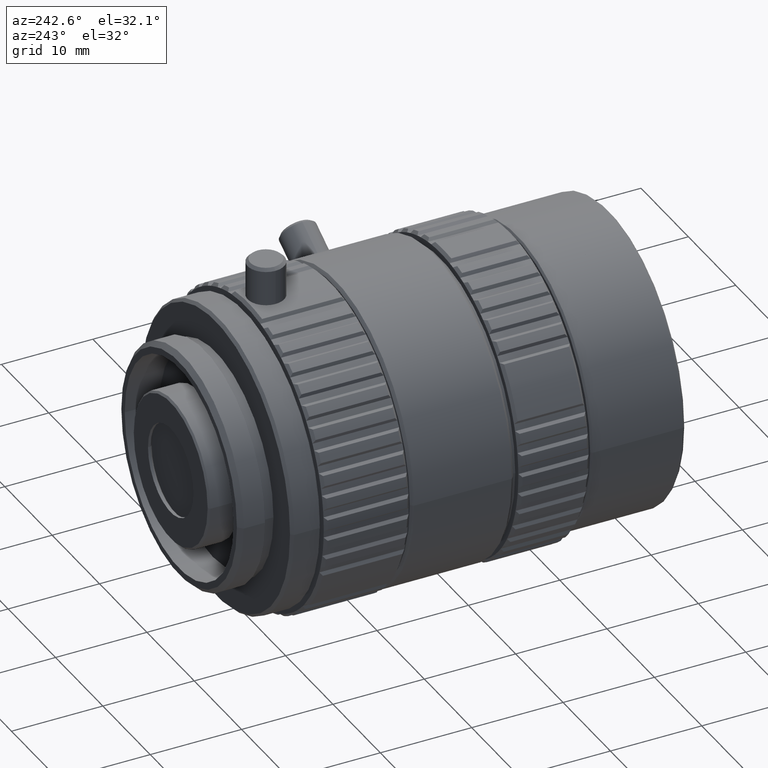
[diagram: clean part render]
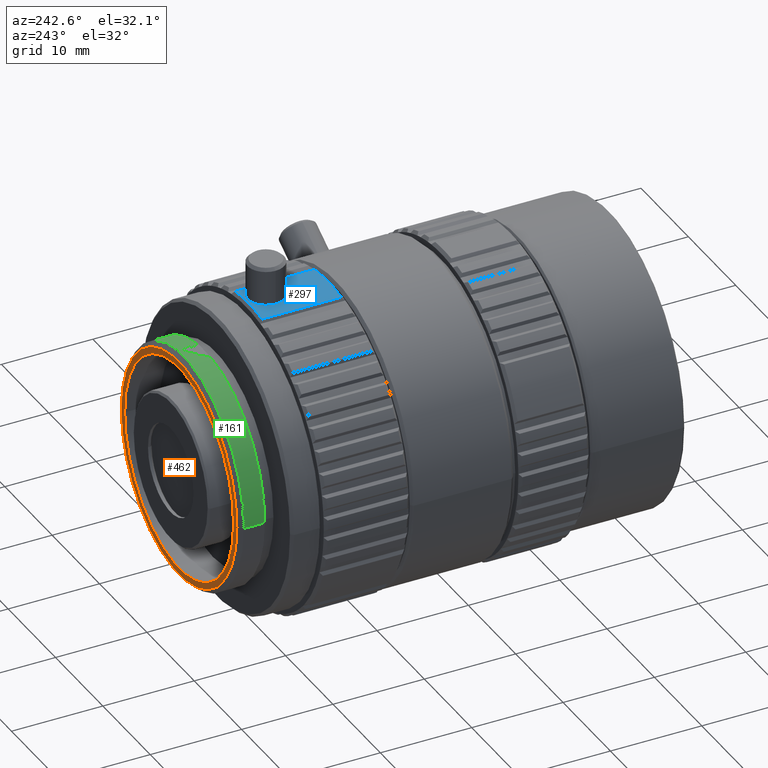
[diagram: same view with three faces highlighted in distinct colors, each labeled with its STEP entity id]
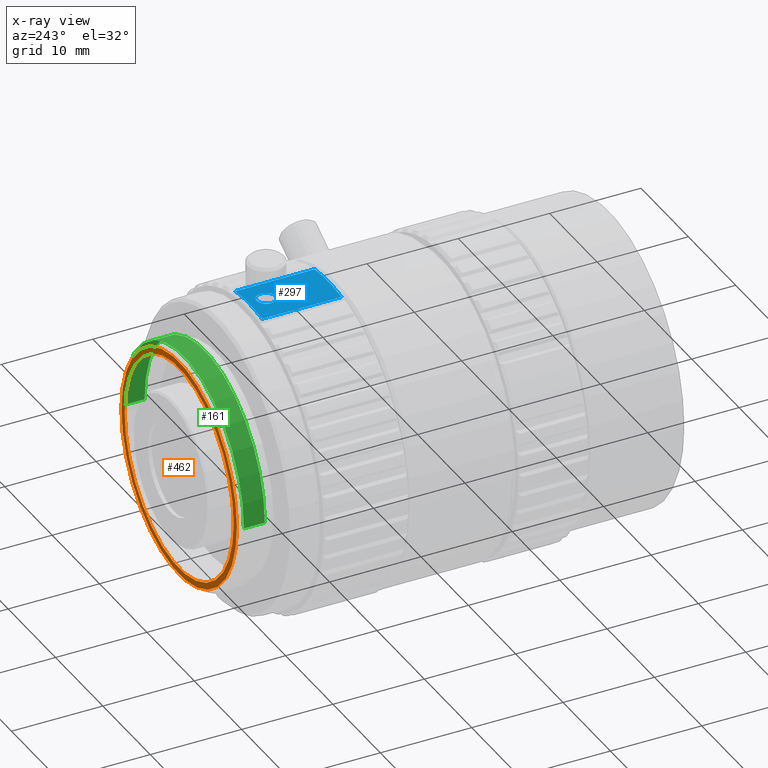
[diagram: x-ray of the same camera — body ghosted, the three highlighted faces saturated]
A machine part, auxiliary view with three faces highlighted in distinct colors.
The next image is the same camera in x-ray (body ghosted, the three faces saturated) — at least one of them is partly hidden behind the body in this view.
Their STEP definitions:

[orange] entity #462 — the highlighted planar face has unit normal (0, 1, 0).
#462=ADVANCED_FACE('0:10896',(#1954,#1955),#1956,.T.);
#1954=FACE_OUTER_BOUND('',#4285,.T.);
#1955=FACE_BOUND('',#4286,.T.);
#1956=PLANE('',#4287);
#4285=EDGE_LOOP('',(#8559,#8560));
#4286=EDGE_LOOP('',(#8561,#8562));
#4287=AXIS2_PLACEMENT_3D('',#8563,#8564,#8565);
#8559=ORIENTED_EDGE('',*,*,#14742,.F.);
#8560=ORIENTED_EDGE('',*,*,#14661,.F.);
#8561=ORIENTED_EDGE('',*,*,#14666,.T.);
#8562=ORIENTED_EDGE('',*,*,#14739,.T.);
#8563=CARTESIAN_POINT('',(2.44921270764476E-19,-0.013526,0.0122));
#8564=DIRECTION('',(2.29561756065156E-49,1.0,3.74915180455535E-33));
#8565=DIRECTION('',(0.0,3.74915180455535E-33,-1.0));
#14661=EDGE_CURVE('0:11685',#17363,#17365,#17366,.T.);
#14666=EDGE_CURVE('0:11679',#17369,#17373,#17375,.T.);
#14739=EDGE_CURVE('0:11679',#17373,#17369,#17492,.T.);
#14742=EDGE_CURVE('0:11685',#17365,#17363,#17495,.T.);
#17363=VERTEX_POINT('',#21582);
#17365=VERTEX_POINT('NONE',#21585);
#17366=CIRCLE('',#21586,0.0122);
#17369=VERTEX_POINT('NONE',#21590);
#17373=VERTEX_POINT('',#21595);
#17375=CIRCLE('',#21598,0.0115);
#17492=CIRCLE('',#21806,0.0115);
#17495=CIRCLE('',#21809,0.0122);
#21582=CARTESIAN_POINT('',(0.0122,-0.013526,-4.67220278187292E-17));
#21585=CARTESIAN_POINT('',(-0.0122,-0.013526,-4.66914116487505E-17));
#21586=AXIS2_PLACEMENT_3D('',#26612,#26613,#26614);
#21590=CARTESIAN_POINT('',(0.0115,-0.013526,-4.8216096913689E-17));
#21595=CARTESIAN_POINT('',(-0.0115,-0.013526,-4.96244407327084E-17));
#21598=AXIS2_PLACEMENT_3D('',#26621,#26622,#26623);
#21806=AXIS2_PLACEMENT_3D('',#26778,#26779,#26780);
#21809=AXIS2_PLACEMENT_3D('',#26787,#26788,#26789);
#26612=CARTESIAN_POINT('',(2.44921270764476E-19,-0.013526,-4.8216096913689E-17));
#26613=DIRECTION('',(0.0,-1.0,0.0));
#26614=DIRECTION('',(1.0,0.0,0.0));
#26621=CARTESIAN_POINT('',(2.44921270764476E-19,-0.013526,-4.8216096913689E-17));
#26622=DIRECTION('',(0.0,-1.0,0.0));
#26623=DIRECTION('',(1.0,0.0,0.0));
#26778=CARTESIAN_POINT('',(2.44921270764476E-19,-0.013526,-4.8216096913689E-17));
#26779=DIRECTION('',(0.0,-1.0,0.0));
#26780=DIRECTION('',(1.0,0.0,0.0));
#26787=CARTESIAN_POINT('',(2.44921270764476E-19,-0.013526,-4.8216096913689E-17));
#26788=DIRECTION('',(0.0,-1.0,0.0));
#26789=DIRECTION('',(1.0,0.0,0.0));

[blue] entity #297 — the highlighted cylindrical surface (partial cylindrical patch) has radius 16.75 mm, axis along (0, 1, 0).
#297=ADVANCED_FACE('0:10401',(#1608,#1609),#1610,.T.);
#1608=FACE_OUTER_BOUND('',#3939,.T.);
#1609=FACE_BOUND('',#3940,.T.);
#1610=CYLINDRICAL_SURFACE('',#3941,0.01675);
#3939=EDGE_LOOP('',(#7097,#7098,#7099,#7100));
#3940=EDGE_LOOP('',(#7101,#7102));
#3941=AXIS2_PLACEMENT_3D('',#7103,#7104,#7105);
#7097=ORIENTED_EDGE('',*,*,#14935,.F.);
#7098=ORIENTED_EDGE('',*,*,#15046,.T.);
#7099=ORIENTED_EDGE('',*,*,#15047,.T.);
#7100=ORIENTED_EDGE('',*,*,#15048,.F.);
#7101=ORIENTED_EDGE('',*,*,#14724,.F.);
#7102=ORIENTED_EDGE('',*,*,#14699,.F.);
#7103=CARTESIAN_POINT('',(-2.23184507984128E-18,-0.053976,-4.8216096913689E-17));
#7104=DIRECTION('',(0.0,1.0,-0.0));
#7105=DIRECTION('',(1.0,0.0,0.0));
#14699=EDGE_CURVE('0:11637',#17436,#17432,#17438,.T.);
#14724=EDGE_CURVE('0:11637',#17432,#17436,#17477,.T.);
#14935=EDGE_CURVE('0:12297',#17838,#17840,#17841,.T.);
#15046=EDGE_CURVE('0:12633',#17838,#18022,#18023,.T.);
#15047=EDGE_CURVE('0:12636',#18022,#18024,#18025,.T.);
#15048=EDGE_CURVE('0:12639',#17840,#18024,#18026,.T.);
#17432=VERTEX_POINT('NONE',#21671);
#17436=VERTEX_POINT('',#21676);
#17438=B_SPLINE_CURVE_WITH_KNOTS('',3,(#21679,#21680,#21681,#21682,#21683,#21684,#21685,#21686,#21687,#21688,#21689,#21690,#21691,#21692,#21693,#21694,#21695,#21696,#21697,#21698,#21699,#21700,#21701,#21702,#21703,#21704,#21705,#21706,#21707,#21708,#21709,#21710,#21711,#21712),.UNSPECIFIED.,.F.,.F.,(4,3,3,3,3,3,3,3,3,3,3,4),(0.500085192836003,0.584992677064609,0.617773337121513,0.64476449184537,0.716154585152398,0.748414328409746,0.780066575245231,0.835691683730441,0.874565499039763,0.902744293206046,0.970037701148248,1.0),.UNSPECIFIED.);
#17477=B_SPLINE_CURVE_WITH_KNOTS('',3,(#21761,#21762,#21763,#21764,#21765,#21766,#21767,#21768,#21769,#21770,#21771,#21772,#21773,#21774,#21775,#21776,#21777,#21778,#21779,#21780,#21781,#21782,#21783,#21784,#21785,#21786,#21787,#21788,#21789,#21790,#21791),.UNSPECIFIED.,.F.,.F.,(4,3,3,3,3,3,3,3,3,3,4),(0.0,0.0625106491045004,0.123894171636405,0.153654112083464,0.221389845581833,0.252494024187756,0.314391816349818,0.372067091107547,0.403838696627453,0.470541752772932,0.500085192836003),.UNSPECIFIED.);
#17838=VERTEX_POINT('NONE',#22158);
#17840=VERTEX_POINT('NONE',#22160);
#17841=CIRCLE('',#22161,0.01675);
#18022=VERTEX_POINT('NONE',#22416);
#18023=LINE('',#22417,#22418);
#18024=VERTEX_POINT('NONE',#22419);
#18025=CIRCLE('',#22420,0.01675);
#18026=LINE('',#22421,#22422);
#21671=CARTESIAN_POINT('',(-0.001,-0.023026,0.0167201226072059));
#21676=CARTESIAN_POINT('',(0.001,-0.023026,0.0167201226072059));
#21679=CARTESIAN_POINT('',(0.001,-0.023026,0.0167201226072059));
#21680=CARTESIAN_POINT('',(0.000999999999999996,-0.022906861367662,0.0167201226072059));
#21681=CARTESIAN_POINT('',(0.000979744235424492,-0.0227435750317003,0.0167215726810316));
#21682=CARTESIAN_POINT('',(0.000888266947840262,-0.022566672416053,0.0167264306362527));
#21683=CARTESIAN_POINT('',(0.000852949850714259,-0.022498374732293,0.0167283061714911));
#21684=CARTESIAN_POINT('',(0.000807155582934813,-0.0224290709918325,0.0167306439664346));
#21685=CARTESIAN_POINT('',(0.000748497402783866,-0.0223628622782364,0.0167332678111009));
#21686=CARTESIAN_POINT('',(0.000700199045962323,-0.0223083469137002,0.016735428249519));
#21687=CARTESIAN_POINT('',(0.000643456024622476,-0.022257400688476,0.0167377297949559));
#21688=CARTESIAN_POINT('',(0.000587505255672131,-0.0222167796501832,0.0167396934731361));
#21689=CARTESIAN_POINT('',(0.000439518603865988,-0.0221093392778234,0.0167448872919982));
#21690=CARTESIAN_POINT('',(0.000287057209130306,-0.0220597388264452,0.0167480070638101));
#21691=CARTESIAN_POINT('',(0.000161993274820062,-0.0220392081379982,0.0167492166437392));
#21692=CARTESIAN_POINT('',(0.000105479405392115,-0.0220299307339843,0.0167497632285125));
#21693=CARTESIAN_POINT('',(5.36746075174656E-05,-0.0220263850555336,0.0167499770122678));
#21694=CARTESIAN_POINT('',(7.73035278534375E-06,-0.0220260298796235,0.0167499982161684));
#21695=CARTESIAN_POINT('',(-3.73487068913722E-05,-0.0220256813921763,0.0167500190207697));
#21696=CARTESIAN_POINT('',(-8.60221611846641E-05,-0.0220281899861523,0.0167498676217966));
#21697=CARTESIAN_POINT('',(-0.000140473528261552,-0.0220359155652886,0.0167494109504739));
#21698=CARTESIAN_POINT('',(-0.000236165414419351,-0.0220494923637952,0.0167486084042283));
#21699=CARTESIAN_POINT('',(-0.000347643290734095,-0.0220792817906058,0.0167467938285857));
#21700=CARTESIAN_POINT('',(-0.000463613474743374,-0.0221399624465993,0.0167435827273029));
#21701=CARTESIAN_POINT('',(-0.000544659671997325,-0.0221823693502112,0.0167413386371499));
#21702=CARTESIAN_POINT('',(-0.000627046732560074,-0.0222395255366259,0.0167384359982589));
#21703=CARTESIAN_POINT('',(-0.00070396749058673,-0.0223157678040267,0.0167352003206474));
#21704=CARTESIAN_POINT('',(-0.000759725696728845,-0.0223710341868801,0.016732854847411));
#21705=CARTESIAN_POINT('',(-0.000805915869755752,-0.0224298549540026,0.0167306429641589));
#21706=CARTESIAN_POINT('',(-0.000843476443254059,-0.0224888338342045,0.016728749131052));
#21707=CARTESIAN_POINT('',(-0.000933174355096894,-0.0226296805227454,0.0167242264931037));
#21708=CARTESIAN_POINT('',(-0.000973635814851322,-0.0227697523217534,0.0167216866350255));
#21709=CARTESIAN_POINT('',(-0.000990057583218277,-0.0228853373471316,0.0167207142784604));
#21710=CARTESIAN_POINT('',(-0.000997369353368298,-0.0229368014233178,0.0167202813380152));
#21711=CARTESIAN_POINT('',(-0.001,-0.0229840261720646,0.0167201226072059));
#21712=CARTESIAN_POINT('',(-0.001,-0.023026,0.0167201226072059));
#21761=CARTESIAN_POINT('',(-0.001,-0.023026,0.0167201226072059));
#21762=CARTESIAN_POINT('',(-0.001,-0.0231136311998549,0.0167201226072059));
#21763=CARTESIAN_POINT('',(-0.000988898474597032,-0.0232240596015257,0.0167208362179166));
#21764=CARTESIAN_POINT('',(-0.000946728341060151,-0.0233480333029882,0.0167232235363949));
#21765=CARTESIAN_POINT('',(-0.000905318575216778,-0.0234697716404732,0.0167255678092461));
#21766=CARTESIAN_POINT('',(-0.000832589693258675,-0.0236053750993907,0.0167297189923264));
#21767=CARTESIAN_POINT('',(-0.000713520863137283,-0.0237266339828097,0.0167347957256091));
#21768=CARTESIAN_POINT('',(-0.000655793949670043,-0.0237854226772408,0.0167372570258723));
#21769=CARTESIAN_POINT('',(-0.000593452768021873,-0.0238342043022341,0.0167395991363415));
#21770=CARTESIAN_POINT('',(-0.000531311445065076,-0.0238731765744772,0.0167415712568546));
#21771=CARTESIAN_POINT('',(-0.000389873390156147,-0.0239618802280068,0.0167460599429037));
#21772=CARTESIAN_POINT('',(-0.000249781073037907,-0.0240012792753992,0.0167485350290372));
#21773=CARTESIAN_POINT('',(-0.000134388932303428,-0.0240169286628584,0.0167494608753498));
#21774=CARTESIAN_POINT('',(-8.14009808964866E-05,-0.0240241148453571,0.0167498860230168));
#21775=CARTESIAN_POINT('',(-3.45059720335664E-05,-0.0240263987267228,0.0167500238032981));
#21776=CARTESIAN_POINT('',(1.00818339178418E-05,-0.0240259491770209,0.0167499969658691));
#21777=CARTESIAN_POINT('',(9.88122511620707E-05,-0.024025054566224,0.016749943558974));
#21778=CARTESIAN_POINT('',(0.000209438499996232,-0.0240125639763145,0.0167491465504809));
#21779=CARTESIAN_POINT('',(0.000333004747288187,-0.0239689251498839,0.0167466894590627));
#21780=CARTESIAN_POINT('',(0.000448141604588133,-0.0239282632584565,0.0167443999844676));
#21781=CARTESIAN_POINT('',(0.000574351857794243,-0.0238598482389276,0.0167405453741001));
#21782=CARTESIAN_POINT('',(0.000689317316019128,-0.0237504595487922,0.0167358101577974));
#21783=CARTESIAN_POINT('',(0.00075264839164,-0.0236902005500111,0.016733201666983));
#21784=CARTESIAN_POINT('',(0.000806285603999577,-0.0236226983126024,0.016730634647617));
#21785=CARTESIAN_POINT('',(0.000847851805143155,-0.0235562332661343,0.0167285279482839));
#21786=CARTESIAN_POINT('',(0.000935118174067986,-0.0234166928918372,0.0167241050278302));
#21787=CARTESIAN_POINT('',(0.000974417682063145,-0.0232785622135158,0.0167216406359926));
#21788=CARTESIAN_POINT('',(0.000990370287130005,-0.0231644438311014,0.016720695759877));
#21789=CARTESIAN_POINT('',(0.000997435852920794,-0.0231138996763688,0.0167202772649458));
#21790=CARTESIAN_POINT('',(0.001,-0.0230674541202682,0.0167201226072059));
#21791=CARTESIAN_POINT('',(0.001,-0.023026,0.0167201226072059));
#22158=CARTESIAN_POINT('',(0.00285254582334347,-0.029826,0.0165053167896204));
#22160=CARTESIAN_POINT('',(-0.00285254582334351,-0.029826,0.0165053167896204));
#22161=AXIS2_PLACEMENT_3D('',#27360,#27361,#27362);
#22416=CARTESIAN_POINT('',(0.00285254582334348,-0.021126,0.0165053167896204));
#22417=CARTESIAN_POINT('',(0.00285254582334347,-0.084888309394572,0.0165053167896204));
#22418=VECTOR('',#27545,1.0);
#22419=CARTESIAN_POINT('',(-0.00285254582334351,-0.021126,0.0165053167896204));
#22420=AXIS2_PLACEMENT_3D('',#27546,#27547,#27548);
#22421=CARTESIAN_POINT('',(-0.00285254582334351,-0.084888309394572,0.0165053167896204));
#22422=VECTOR('',#27549,1.0);
#27360=CARTESIAN_POINT('',(-7.53132907600762E-19,-0.029826,-4.8216096913689E-17));
#27361=DIRECTION('',(0.0,-1.0,0.0));
#27362=DIRECTION('',(1.0,0.0,0.0));
#27545=DIRECTION('',(6.12303176911189E-17,1.0,0.0));
#27546=CARTESIAN_POINT('',(-2.20429143688029E-19,-0.021126,-4.8216096913689E-17));
#27547=DIRECTION('',(0.0,-1.0,0.0));
#27548=DIRECTION('',(1.0,0.0,0.0));
#27549=DIRECTION('',(6.12303176911189E-17,1.0,0.0));

[green] entity #161 — the highlighted cylindrical surface (partial cylindrical patch) has radius 12.7 mm, axis along (0, 1, 0).
#161=ADVANCED_FACE('0:10095',(#1336),#1337,.T.);
#1336=FACE_OUTER_BOUND('',#3667,.T.);
#1337=CYLINDRICAL_SURFACE('',#3668,0.0127);
#3667=EDGE_LOOP('',(#6149,#6150,#6151,#6152));
#3668=AXIS2_PLACEMENT_3D('',#6153,#6154,#6155);
#6149=ORIENTED_EDGE('',*,*,#14656,.F.);
#6150=ORIENTED_EDGE('',*,*,#14657,.T.);
#6151=ORIENTED_EDGE('',*,*,#14658,.F.);
#6152=ORIENTED_EDGE('',*,*,#14659,.F.);
#6153=CARTESIAN_POINT('',(-2.23184507984128E-18,-0.053976,-4.8216096913689E-17));
#6154=DIRECTION('',(0.0,1.0,-0.0));
#6155=DIRECTION('',(1.0,0.0,0.0));
#14656=EDGE_CURVE('',#17355,#17356,#17357,.T.);
#14657=EDGE_CURVE('0:11688',#17355,#17358,#17359,.T.);
#14658=EDGE_CURVE('',#17360,#17358,#17361,.T.);
#14659=EDGE_CURVE('0:11691',#17356,#17360,#17362,.T.);
#17355=VERTEX_POINT('NONE',#21572);
#17356=VERTEX_POINT('NONE',#21573);
#17357=LINE('',#21574,#21575);
#17358=VERTEX_POINT('',#21576);
#17359=CIRCLE('',#21577,0.0127);
#17360=VERTEX_POINT('',#21578);
#17361=LINE('',#21579,#21580);
#17362=CIRCLE('',#21581,0.0127);
#21572=CARTESIAN_POINT('',(0.0127,-0.014026,-4.8216096913689E-17));
#21573=CARTESIAN_POINT('',(0.0127,-0.016326,-4.8216096913689E-17));
#21574=CARTESIAN_POINT('',(0.0127,-0.015176,-4.66607954787719E-17));
#21575=VECTOR('',#26603,1.0);
#21576=CARTESIAN_POINT('',(-0.0127,-0.014026,-4.97713983486061E-17));
#21577=AXIS2_PLACEMENT_3D('',#26604,#26605,#26606);
#21578=CARTESIAN_POINT('',(-0.0127,-0.016326,-4.97713983486061E-17));
#21579=CARTESIAN_POINT('',(-0.0127,-0.015176,-4.97713983486061E-17));
#21580=VECTOR('',#26607,1.0);
#21581=AXIS2_PLACEMENT_3D('',#26608,#26609,#26610);
#26603=DIRECTION('',(-0.0,-1.0,0.0));
#26604=CARTESIAN_POINT('',(2.14306111918916E-19,-0.014026,-4.8216096913689E-17));
#26605=DIRECTION('',(0.0,-1.0,0.0));
#26606=DIRECTION('',(1.0,0.0,0.0));
#26607=DIRECTION('',(0.0,1.0,0.0));
#26608=CARTESIAN_POINT('',(7.34763812293413E-20,-0.016326,-4.8216096913689E-17));
#26609=DIRECTION('',(0.0,-1.0,0.0));
#26610=DIRECTION('',(1.0,0.0,0.0));